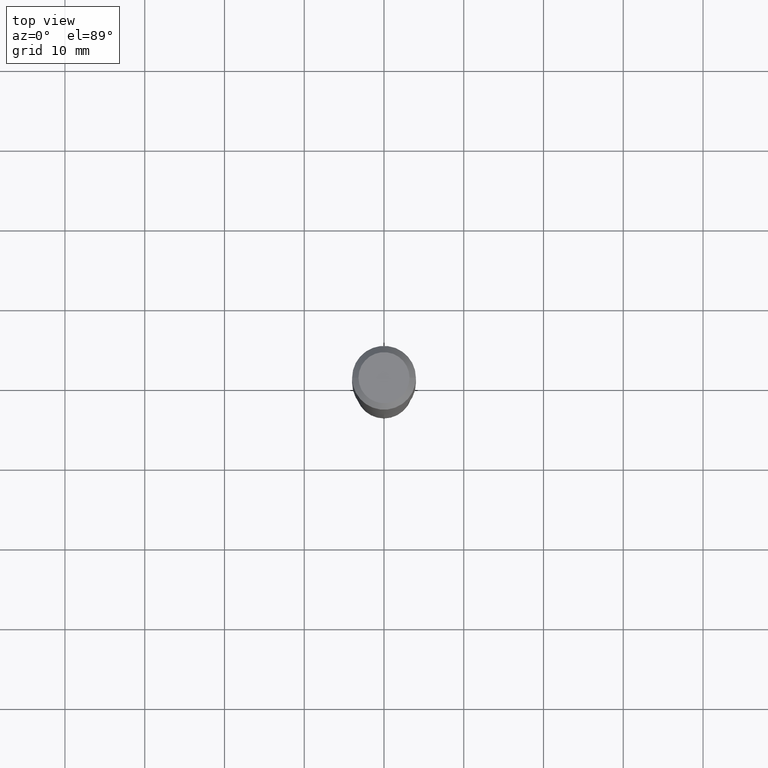
[diagram: clean part render]
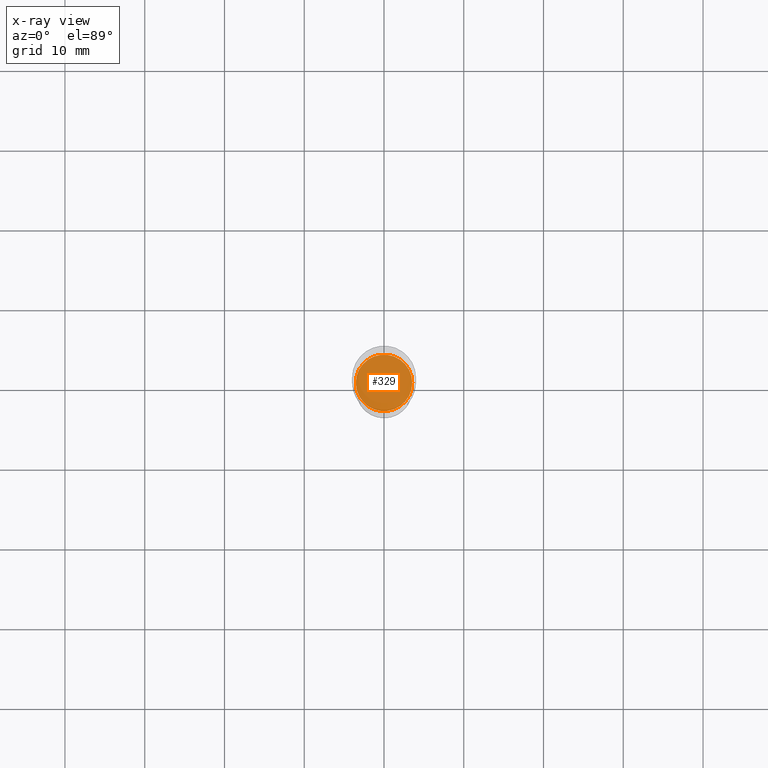
[diagram: x-ray — body ghosted, one internal face saturated and labeled with its STEP entity id]
A machine part, top view, then the same camera in x-ray: the body is ghosted and one INTERNAL B-rep face — a face not visible from any outside direction — is saturated and labeled: STEP entity #329.
In plain terms, the highlighted planar face has unit normal (-0, 0, 1).
Its self-contained STEP definition (entity closure, byte-faithful):
#43 = DIRECTION ( 'NONE',  ( 1.000000000000000000, -6.982962677686267499E-15, 0.000000000000000000 ) ) ;
#62 = PLANE ( 'NONE',  #215 ) ;
#89 = VERTEX_POINT ( 'NONE', #272 ) ;
#93 = EDGE_CURVE ( 'NONE', #89, #163, #462, .T. ) ;
#106 = CARTESIAN_POINT ( 'NONE',  ( 3.659399521575439863E-29, -5.224652675444884140E-15, -1.496400000000000396 ) ) ;
#125 = AXIS2_PLACEMENT_3D ( 'NONE', #106, #414, #221 ) ;
#129 = ORIENTED_EDGE ( 'NONE', *, *, #93, .F. ) ;
#131 = ORIENTED_EDGE ( 'NONE', *, *, #219, .F. ) ;
#163 = VERTEX_POINT ( 'NONE', #333 ) ;
#176 = AXIS2_PLACEMENT_3D ( 'NONE', #233, #388, #43 ) ;
#212 = CARTESIAN_POINT ( 'NONE',  ( 1.609423661035880704E-29, -8.160334785117561319E-15, -1.496400000000000396 ) ) ;
#215 = AXIS2_PLACEMENT_3D ( 'NONE', #212, #407, #365 ) ;
#219 = EDGE_CURVE ( 'NONE', #163, #89, #278, .T. ) ;
#221 = DIRECTION ( 'NONE',  ( 1.000000000000000000, -6.982962677686267499E-15, 0.000000000000000000 ) ) ;
#233 = CARTESIAN_POINT ( 'NONE',  ( 3.659399521575439863E-29, -5.224652675444884140E-15, -1.496400000000000396 ) ) ;
#272 = CARTESIAN_POINT ( 'NONE',  ( -0.1392500000000000127, -4.232572688724833537E-15, -1.496400000000000396 ) ) ;
#278 = CIRCLE ( 'NONE', #125, 0.1392500000000000127 ) ;
#329 = ADVANCED_FACE ( 'NONE', ( #396 ), #62, .F. ) ;
#333 = CARTESIAN_POINT ( 'NONE',  ( 0.1392500000000000127, -6.197030228312697126E-15, -1.496400000000000396 ) ) ;
#365 = DIRECTION ( 'NONE',  ( 1.000000000000000000, -6.982962677686265922E-15, 4.876176775795935793E-29 ) ) ;
#368 = EDGE_LOOP ( 'NONE', ( #131, #129 ) ) ;
#388 = DIRECTION ( 'NONE',  ( -2.445468806185136597E-29, 3.491481338843145583E-15, 1.000000000000000000 ) ) ;
#396 = FACE_OUTER_BOUND ( 'NONE', #368, .T. ) ;
#407 = DIRECTION ( 'NONE',  ( -2.438088387897960049E-29, 3.491481338843145188E-15, 1.000000000000000000 ) ) ;
#414 = DIRECTION ( 'NONE',  ( -2.445468806185136597E-29, 3.491481338843145583E-15, 1.000000000000000000 ) ) ;
#462 = CIRCLE ( 'NONE', #176, 0.1392500000000000127 ) ;